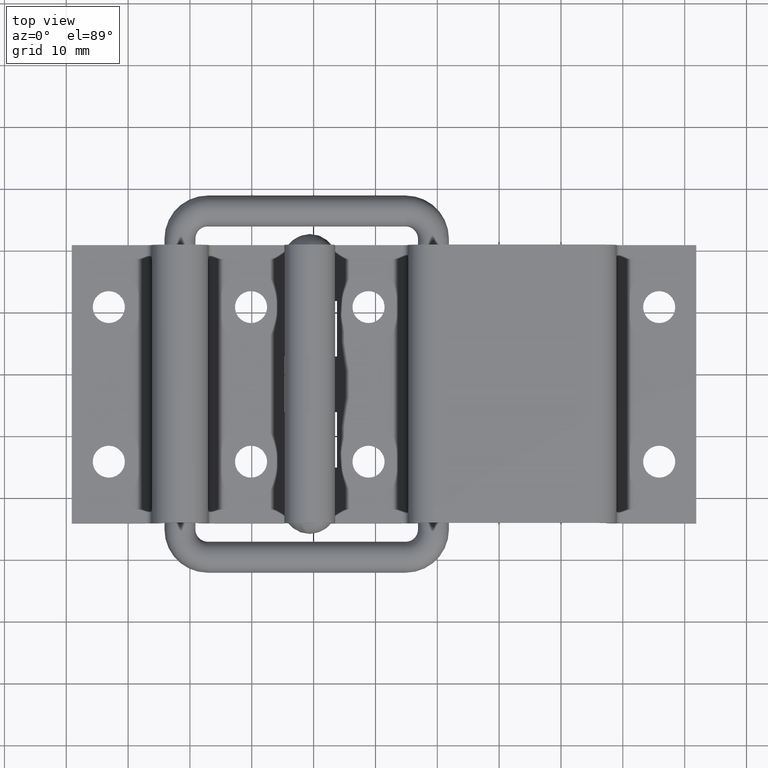
[diagram: clean part render]
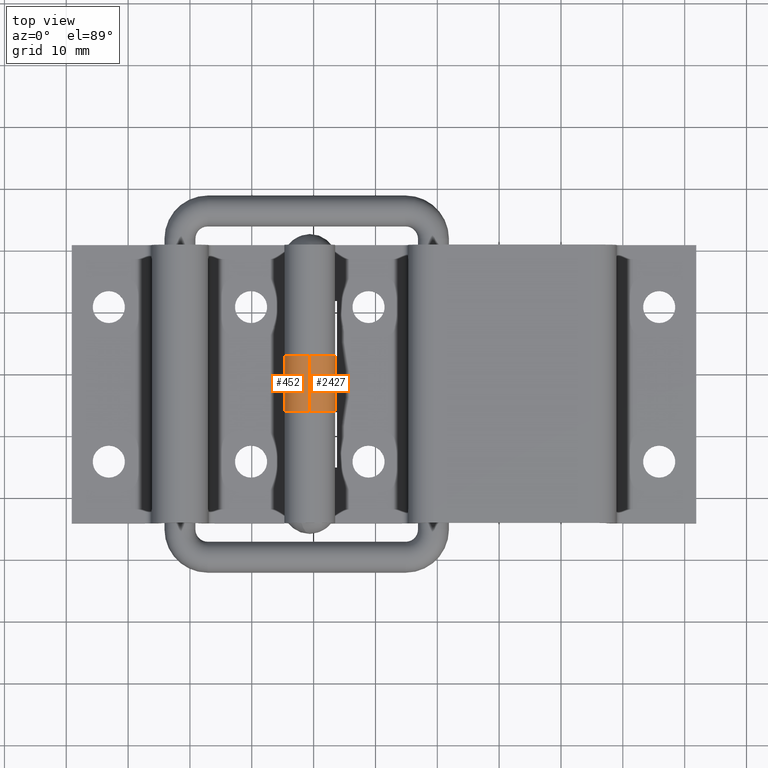
[diagram: same view with one multi-face feature highlighted, each face labeled with its STEP entity id]
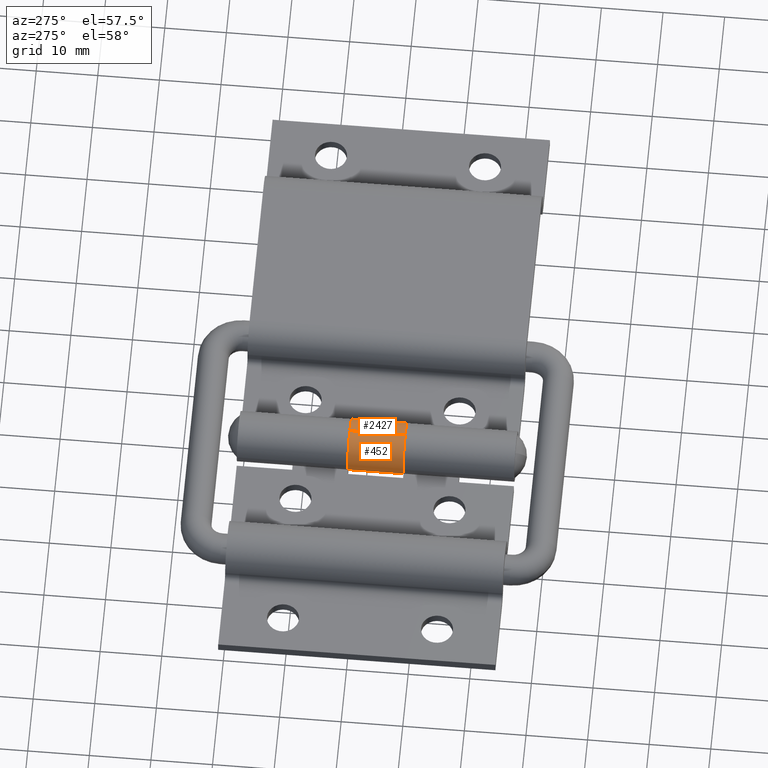
[diagram: same view with one multi-face feature highlighted, each face labeled with its STEP entity id]
A machine part, top view. The highlighted faces form ONE feature: a constant-radius fillet chain: 2 tangent blend faces with common blend radius 4.1 mm. The faces share edges in the B-rep.
A second angle (auxiliary view) of the same feature is appended — it is thin or edge-on in the first view.
Their STEP definitions:
[1] entity #452 (Cylinder):
#273 = DIRECTION ( 'NONE',  ( 6.339923241156713100E-015, 1.301042606982605600E-014, -1.000000000000000000 ) ) ;
#452 = ADVANCED_FACE ( 'NONE', ( #3512 ), #1678, .T. ) ;
#688 = CARTESIAN_POINT ( 'NONE',  ( 2.282372366816415700E-013, 4.683753385137378100E-013, 18.00000000000003600 ) ) ;
#713 = VECTOR ( 'NONE', #3867, 1000.000000000000000 ) ;
#865 = EDGE_CURVE ( 'NONE', #1149, #2785, #2744, .T. ) ;
#1025 = DIRECTION ( 'NONE',  ( -6.339923241156713900E-015, -1.301042606982606000E-014, 1.000000000000000000 ) ) ;
#1057 = DIRECTION ( 'NONE',  ( 6.339923241156713100E-015, 1.301042606982605600E-014, -1.000000000000000000 ) ) ;
#1105 = LINE ( 'NONE', #2666, #3662 ) ;
#1149 = VERTEX_POINT ( 'NONE', #3584 ) ;
#1563 = CARTESIAN_POINT ( 'NONE',  ( 2.238316773039686400E-013, 4.099999000000498700, 18.00000000000009200 ) ) ;
#1566 = CARTESIAN_POINT ( 'NONE',  ( 2.238316773039686400E-013, 4.099999000000498700, 18.00000000000009200 ) ) ;
#1678 = CYLINDRICAL_SURFACE ( 'NONE', #1758, 4.099999000000027900 ) ;
#1758 = AXIS2_PLACEMENT_3D ( 'NONE', #688, #1025, #3351 ) ;
#1799 = ORIENTED_EDGE ( 'NONE', *, *, #3214, .F. ) ;
#1884 = ORIENTED_EDGE ( 'NONE', *, *, #865, .F. ) ;
#2040 = VERTEX_POINT ( 'NONE', #2237 ) ;
#2074 = CIRCLE ( 'NONE', #3856, 4.099999000000027900 ) ;
#2237 = CARTESIAN_POINT ( 'NONE',  ( 1.997075820964371300E-013, -4.099998999999676200, 26.99999999999996800 ) ) ;
#2272 = CARTESIAN_POINT ( 'NONE',  ( 1.711779275112312500E-013, 3.512815038853035400E-013, 27.00000000000002100 ) ) ;
#2592 = ORIENTED_EDGE ( 'NONE', *, *, #3312, .T. ) ;
#2607 = DIRECTION ( 'NONE',  ( 0.0000000000000000000, -1.000000000000000000, -1.269310170058672200E-014 ) ) ;
#2666 = CARTESIAN_POINT ( 'NONE',  ( 2.282372366816415700E-013, -4.099998999999559000, 17.99999999999998600 ) ) ;
#2744 = CIRCLE ( 'NONE', #4005, 4.099999000000027900 ) ;
#2785 = VERTEX_POINT ( 'NONE', #1566 ) ;
#2866 = EDGE_LOOP ( 'NONE', ( #1884, #3759, #2592, #1799 ) ) ;
#2983 = VERTEX_POINT ( 'NONE', #3324 ) ;
#3040 = CARTESIAN_POINT ( 'NONE',  ( 2.282372366816415700E-013, 4.683753385137378100E-013, 18.00000000000003600 ) ) ;
#3132 = LINE ( 'NONE', #1563, #713 ) ;
#3214 = EDGE_CURVE ( 'NONE', #2785, #2983, #3132, .T. ) ;
#3312 = EDGE_CURVE ( 'NONE', #2040, #2983, #2074, .T. ) ;
#3324 = CARTESIAN_POINT ( 'NONE',  ( 1.667723681335583500E-013, 4.099999000000381400, 27.00000000000007100 ) ) ;
#3351 = DIRECTION ( 'NONE',  ( 0.0000000000000000000, -1.000000000000000000, -1.269310170058672200E-014 ) ) ;
#3376 = DIRECTION ( 'NONE',  ( 0.0000000000000000000, -1.000000000000000000, -1.269310170058672200E-014 ) ) ;
#3512 = FACE_OUTER_BOUND ( 'NONE', #2866, .T. ) ;
#3584 = CARTESIAN_POINT ( 'NONE',  ( 1.997075820964370800E-013, -4.099998999999559000, 17.99999999999998600 ) ) ;
#3662 = VECTOR ( 'NONE', #3977, 1000.000000000000000 ) ;
#3759 = ORIENTED_EDGE ( 'NONE', *, *, #4007, .T. ) ;
#3856 = AXIS2_PLACEMENT_3D ( 'NONE', #2272, #273, #2607 ) ;
#3867 = DIRECTION ( 'NONE',  ( -6.339923241156713900E-015, -1.301042606982606000E-014, 1.000000000000000000 ) ) ;
#3977 = DIRECTION ( 'NONE',  ( -6.339923241156713900E-015, -1.301042606982606000E-014, 1.000000000000000000 ) ) ;
#4005 = AXIS2_PLACEMENT_3D ( 'NONE', #3040, #1057, #3376 ) ;
#4007 = EDGE_CURVE ( 'NONE', #1149, #2040, #1105, .T. ) ;
[2] entity #2427 (Cylinder):
#102 = LINE ( 'NONE', #3970, #2680 ) ;
#978 = DIRECTION ( 'NONE',  ( -6.339923241156713900E-015, -1.301042606982606000E-014, 1.000000000000000000 ) ) ;
#1105 = LINE ( 'NONE', #2666, #3662 ) ;
#1149 = VERTEX_POINT ( 'NONE', #3584 ) ;
#1225 = CARTESIAN_POINT ( 'NONE',  ( 3.287476924336092400, 2.449997402439996200, 18.00000000000009200 ) ) ;
#1332 = CARTESIAN_POINT ( 'NONE',  ( 1.711779275112312500E-013, 3.512815038853035400E-013, 27.00000000000002100 ) ) ;
#1350 = DIRECTION ( 'NONE',  ( 6.339923241156713100E-015, 1.301042606982605600E-014, -1.000000000000000000 ) ) ;
#1520 = CARTESIAN_POINT ( 'NONE',  ( 2.282372366816415700E-013, 4.683753385137378100E-013, 18.00000000000003600 ) ) ;
#1672 = DIRECTION ( 'NONE',  ( 0.0000000000000000000, -1.000000000000000000, -1.269310170058672200E-014 ) ) ;
#1842 = AXIS2_PLACEMENT_3D ( 'NONE', #1332, #3653, #1672 ) ;
#2007 = CIRCLE ( 'NONE', #2294, 4.099999000000027900 ) ;
#2040 = VERTEX_POINT ( 'NONE', #2237 ) ;
#2237 = CARTESIAN_POINT ( 'NONE',  ( 1.997075820964371300E-013, -4.099998999999676200, 26.99999999999996800 ) ) ;
#2294 = AXIS2_PLACEMENT_3D ( 'NONE', #3329, #1350, #3668 ) ;
#2341 = FACE_OUTER_BOUND ( 'NONE', #4144, .T. ) ;
#2376 = CARTESIAN_POINT ( 'NONE',  ( 3.287476924336035600, 2.449997402439879000, 27.00000000000007100 ) ) ;
#2427 = ADVANCED_FACE ( 'NONE', ( #2341 ), #4000, .T. ) ;
#2555 = ORIENTED_EDGE ( 'NONE', *, *, #3509, .T. ) ;
#2666 = CARTESIAN_POINT ( 'NONE',  ( 2.282372366816415700E-013, -4.099998999999559000, 17.99999999999998600 ) ) ;
#2680 = VECTOR ( 'NONE', #978, 1000.000000000000000 ) ;
#3032 = VERTEX_POINT ( 'NONE', #2376 ) ;
#3039 = ORIENTED_EDGE ( 'NONE', *, *, #3949, .T. ) ;
#3269 = ORIENTED_EDGE ( 'NONE', *, *, #4007, .F. ) ;
#3270 = AXIS2_PLACEMENT_3D ( 'NONE', #1520, #3834, #4150 ) ;
#3329 = CARTESIAN_POINT ( 'NONE',  ( 2.282372366816415700E-013, 4.683753385137378100E-013, 18.00000000000003600 ) ) ;
#3509 = EDGE_CURVE ( 'NONE', #3805, #3032, #102, .T. ) ;
#3584 = CARTESIAN_POINT ( 'NONE',  ( 1.997075820964370800E-013, -4.099998999999559000, 17.99999999999998600 ) ) ;
#3653 = DIRECTION ( 'NONE',  ( 6.339923241156713100E-015, 1.301042606982605600E-014, -1.000000000000000000 ) ) ;
#3662 = VECTOR ( 'NONE', #3977, 1000.000000000000000 ) ;
#3668 = DIRECTION ( 'NONE',  ( 0.0000000000000000000, -1.000000000000000000, -1.269310170058672200E-014 ) ) ;
#3805 = VERTEX_POINT ( 'NONE', #1225 ) ;
#3834 = DIRECTION ( 'NONE',  ( -6.339923241156713900E-015, -1.301042606982606000E-014, 1.000000000000000000 ) ) ;
#3844 = CIRCLE ( 'NONE', #1842, 4.099999000000027900 ) ;
#3949 = EDGE_CURVE ( 'NONE', #3032, #2040, #3844, .T. ) ;
#3970 = CARTESIAN_POINT ( 'NONE',  ( 3.287476924336092400, 2.449997402439996200, 18.00000000000009200 ) ) ;
#3977 = DIRECTION ( 'NONE',  ( -6.339923241156713900E-015, -1.301042606982606000E-014, 1.000000000000000000 ) ) ;
#3982 = EDGE_CURVE ( 'NONE', #3805, #1149, #2007, .T. ) ;
#4000 = CYLINDRICAL_SURFACE ( 'NONE', #3270, 4.099999000000027900 ) ;
#4007 = EDGE_CURVE ( 'NONE', #1149, #2040, #1105, .T. ) ;
#4081 = ORIENTED_EDGE ( 'NONE', *, *, #3982, .F. ) ;
#4144 = EDGE_LOOP ( 'NONE', ( #3269, #4081, #2555, #3039 ) ) ;
#4150 = DIRECTION ( 'NONE',  ( 0.0000000000000000000, -1.000000000000000000, -1.269310170058672200E-014 ) ) ;